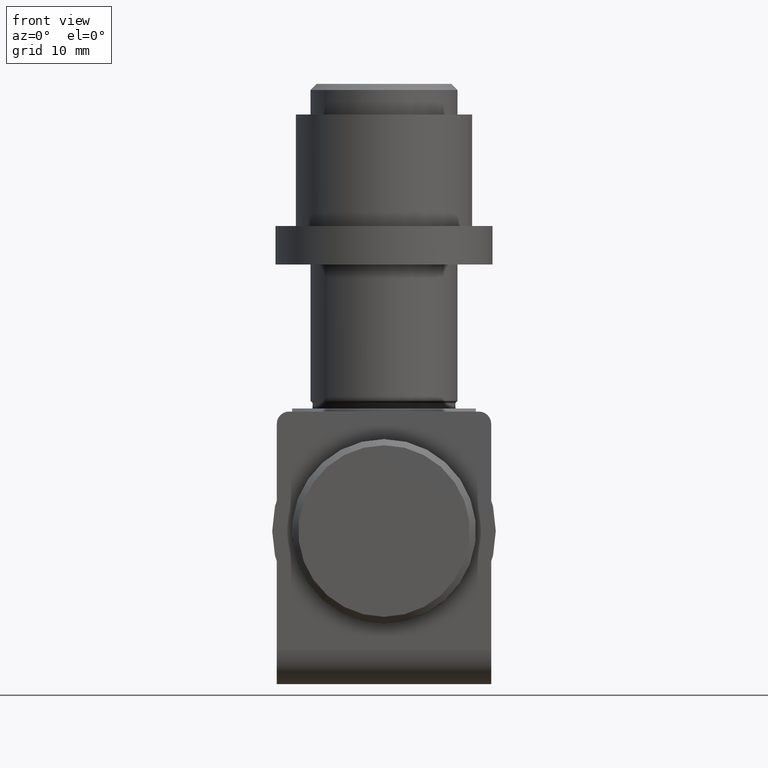
[diagram: clean part render]
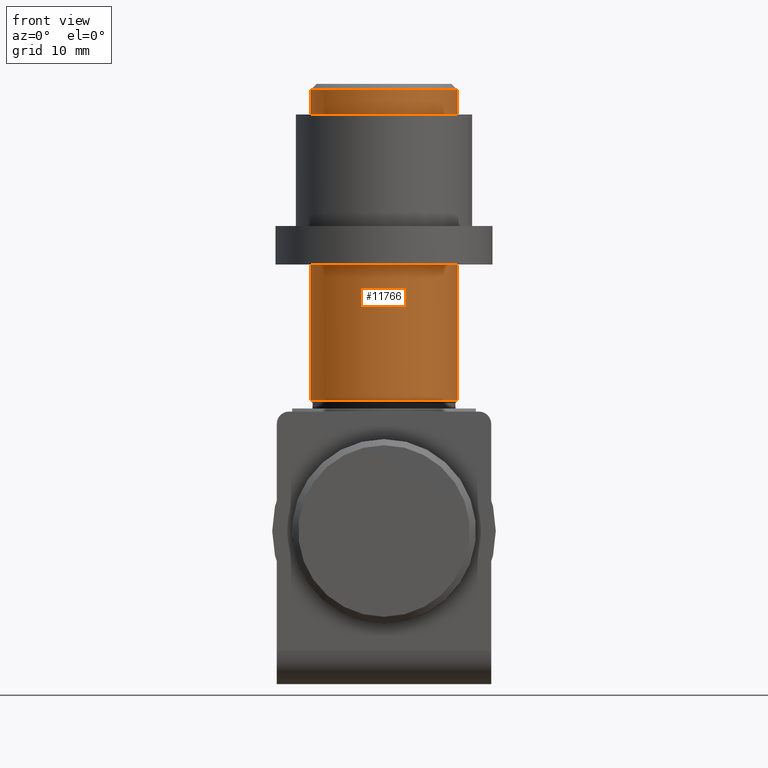
[diagram: same view with one face highlighted and labeled with its STEP entity id]
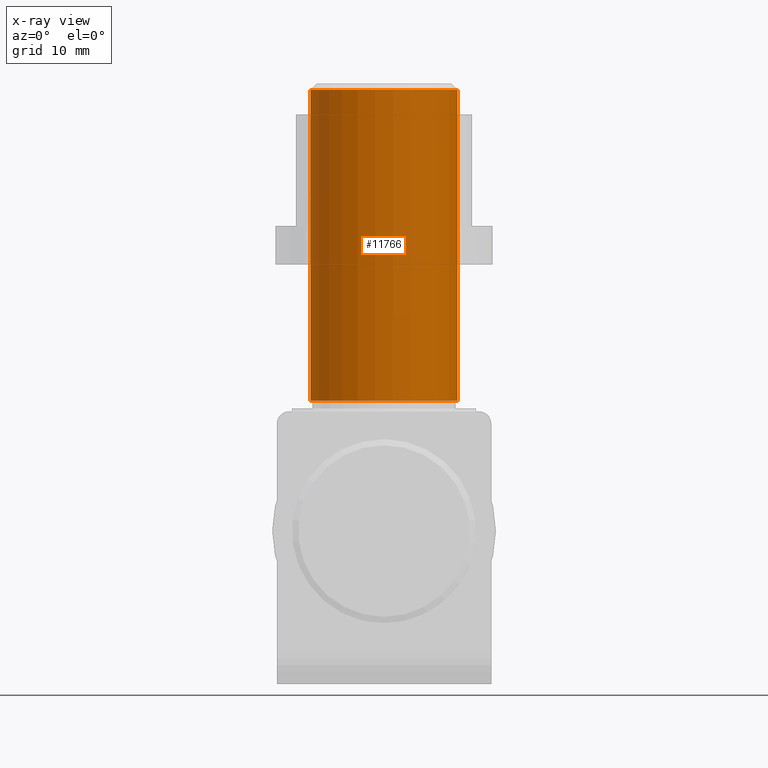
[diagram: x-ray of the same camera — body ghosted, the highlighted face saturated]
A machine part, front view. The second image highlights one B-rep face of the part: STEP entity #11766.
The next image is the same camera in x-ray: the body ghosted, the highlighted face saturated — about 0% of this face is hidden behind the body in this view.
In plain terms, the highlighted cylindrical surface (bore or boss wall) has radius 12 mm, axis along (-0, -0, -1).
Its self-contained STEP definition (entity closure, byte-faithful):
#343 = CYLINDRICAL_SURFACE ( 'NONE', #1290, 12.00000000000000178 ) ;
#1290 = AXIS2_PLACEMENT_3D ( 'NONE', #9358, #3574, #3673 ) ;
#2053 = ORIENTED_EDGE ( 'NONE', *, *, #5073, .T. ) ;
#2077 = VERTEX_POINT ( 'NONE', #4092 ) ;
#3009 = AXIS2_PLACEMENT_3D ( 'NONE', #7755, #8947, #10232 ) ;
#3574 = DIRECTION ( 'NONE',  ( -0.000000000000000000, -0.000000000000000000, -1.000000000000000000 ) ) ;
#3673 = DIRECTION ( 'NONE',  ( -1.000000000000000000, 0.000000000000000000, 0.000000000000000000 ) ) ;
#4092 = CARTESIAN_POINT ( 'NONE',  ( 12.00000000000000178, 0.000000000000000000, 70.25000000000000000 ) ) ;
#4599 = EDGE_LOOP ( 'NONE', ( #2053 ) ) ;
#4736 = EDGE_CURVE ( 'NONE', #12519, #12519, #11686, .T. ) ;
#5073 = EDGE_CURVE ( 'NONE', #2077, #2077, #9360, .T. ) ;
#6313 = FACE_OUTER_BOUND ( 'NONE', #4599, .T. ) ;
#6366 = DIRECTION ( 'NONE',  ( 1.000000000000000000, 0.000000000000000000, 0.000000000000000000 ) ) ;
#7397 = ORIENTED_EDGE ( 'NONE', *, *, #4736, .T. ) ;
#7755 = CARTESIAN_POINT ( 'NONE',  ( 0.000000000000000000, 0.000000000000000000, 19.49999999999998579 ) ) ;
#8947 = DIRECTION ( 'NONE',  ( -0.000000000000000000, -0.000000000000000000, 1.000000000000000000 ) ) ;
#9358 = CARTESIAN_POINT ( 'NONE',  ( 0.000000000000000000, 0.000000000000000000, 194.6911254969542711 ) ) ;
#9360 = CIRCLE ( 'NONE', #11553, 12.00000000000000178 ) ;
#9527 = FACE_OUTER_BOUND ( 'NONE', #14264, .T. ) ;
#10232 = DIRECTION ( 'NONE',  ( 1.000000000000000000, 0.000000000000000000, 0.000000000000000000 ) ) ;
#11038 = CARTESIAN_POINT ( 'NONE',  ( 12.00000000000000178, 0.000000000000000000, 19.49999999999998579 ) ) ;
#11553 = AXIS2_PLACEMENT_3D ( 'NONE', #14254, #12086, #6366 ) ;
#11686 = CIRCLE ( 'NONE', #3009, 12.00000000000000178 ) ;
#11766 = ADVANCED_FACE ( 'NONE', ( #9527, #6313 ), #343, .T. ) ;
#12086 = DIRECTION ( 'NONE',  ( 0.000000000000000000, 0.000000000000000000, -1.000000000000000000 ) ) ;
#12519 = VERTEX_POINT ( 'NONE', #11038 ) ;
#14254 = CARTESIAN_POINT ( 'NONE',  ( 0.000000000000000000, 0.000000000000000000, 70.25000000000000000 ) ) ;
#14264 = EDGE_LOOP ( 'NONE', ( #7397 ) ) ;